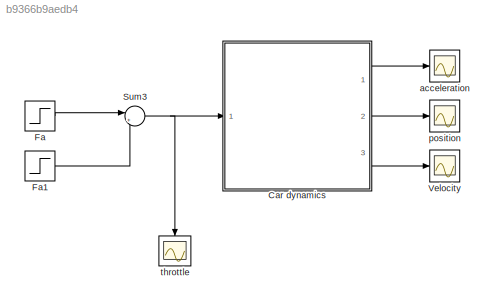
MODEL slx_b9366b9aedb4
KIND model
CONFIG AbsTol = auto
CONFIG FixedStep = auto
CONFIG MaxStep = 0.01
CONFIG MinStep = auto
CONFIG RelTol = 1e-3
CONFIG SampleTimeConstraint = Unconstrained
CONFIG Solver = VariableStepAuto
CONFIG SolverMode = Auto
CONFIG SolverName = VariableStepAuto
CONFIG StartTime = 0.0
CONFIG StopTime = 10
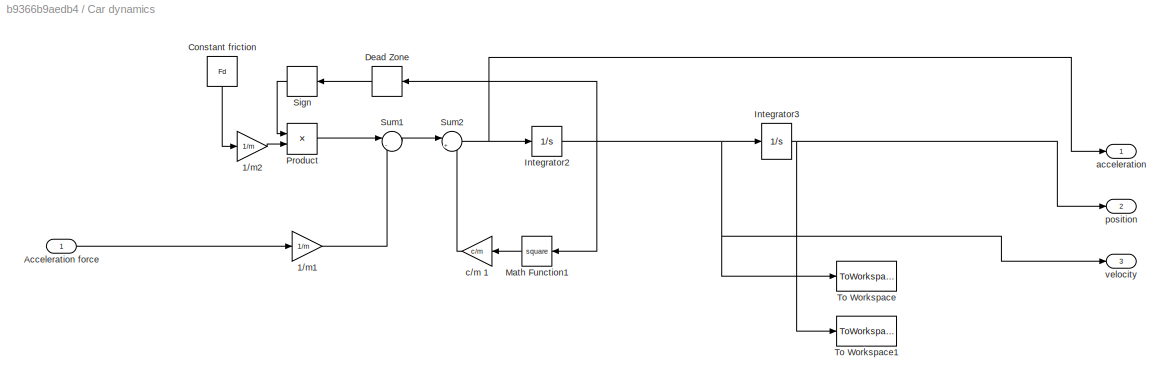
BLOCK [SubSystem] Car dynamics 
  Ports = [1, 3]
  RequestExecContextInheritance = off
  Variant = off
BLOCK [Gain] Car dynamics /1//m1
  Gain = 1/m
  OutDataTypeStr = Inherit: Inherit via internal rule
  ParamDataTypeStr = Inherit: Inherit via internal rule
  SaturateOnIntegerOverflow = off
BLOCK [Gain] Car dynamics /1//m2
  Gain = 1/m
  OutDataTypeStr = Inherit: Inherit via internal rule
  ParamDataTypeStr = Inherit: Inherit via internal rule
  SaturateOnIntegerOverflow = off
BLOCK [Inport] Car dynamics /Acceleration force
  IconDisplay = Port number
BLOCK [Constant] Car dynamics /Constant friction 
  Value = Fd
BLOCK [DeadZone] Car dynamics /Dead Zone
  LowerValue = -0.01
  UpperValue = 0.01
BLOCK [Integrator] Car dynamics /Integrator2
  Ports = [1, 1]
BLOCK [Integrator] Car dynamics /Integrator3
  Ports = [1, 1]
BLOCK [Math] Car dynamics /Math Function1
  Operator = square
  Ports = [1, 1]
BLOCK [Product] Car dynamics /Product
  InputSameDT = off
  OutDataTypeStr = Inherit: Inherit via internal rule
  Ports = [2, 1]
  RndMeth = Floor
  SaturateOnIntegerOverflow = off
BLOCK [Signum] Car dynamics /Sign
BLOCK [Sum] Car dynamics /Sum1
  IconShape = round
  InputSameDT = off
  Inputs = |-+
  OutDataTypeStr = Inherit: Inherit via internal rule
  Ports = [2, 1]
  SaturateOnIntegerOverflow = off
BLOCK [Sum] Car dynamics /Sum2
  IconShape = round
  InputSameDT = off
  Inputs = |+-
  OutDataTypeStr = Inherit: Inherit via internal rule
  Ports = [2, 1]
  SaturateOnIntegerOverflow = off
BLOCK [ToWorkspace] Car dynamics /To Workspace
  FixptAsFi = on
  MaxDataPoints = inf
  Ports = [1]
  SampleTime = -1
  Save2DSignal = 3-D array (concatenate along third dimension)
  SaveFormat = Timeseries
  VariableName = speed
BLOCK [ToWorkspace] Car dynamics /To Workspace1
  FixptAsFi = on
  MaxDataPoints = inf
  Ports = [1]
  SampleTime = -1
  Save2DSignal = 3-D array (concatenate along third dimension)
  SaveFormat = Timeseries
  VariableName = position
BLOCK [Outport] Car dynamics /acceleration
  IconDisplay = Port number
BLOCK [Gain] Car dynamics /c//m 1
  Gain = c/m
  OutDataTypeStr = Inherit: Inherit via internal rule
  ParamDataTypeStr = Inherit: Inherit via internal rule
  SaturateOnIntegerOverflow = off
BLOCK [Outport] Car dynamics /position 
  IconDisplay = Port number
  Port = 2
BLOCK [Outport] Car dynamics /velocity
  IconDisplay = Port number
  Port = 3
BLOCK [Step] Fa
  After = Fa
  SampleTime = 0
BLOCK [Step] Fa1
  After = Fa
  SampleTime = 0
  Time = 6
BLOCK [Sum] Sum3
  IconShape = round
  InputSameDT = off
  Inputs = |+-
  OutDataTypeStr = Inherit: Inherit via internal rule
  Ports = [2, 1]
  SaturateOnIntegerOverflow = off
BLOCK [Scope] Velocity 
  Ports = [1]
  ScopeSpecificationString = Simulink.scopes.TimeScopeBlockCfg('CurrentConfiguration', extmgr.ConfigurationSet(extmgr.Configuration('Core','General UI',true),extmgr.Configuration('Core','Source UI',true),extmgr.Configuration('Sources','WiredSimulink',true,'DataLoggingVariableName','ScopeData2'),extmgr.Configuration('Visuals','Time Domain',true,'SerializedDisplays',{struct('MinYLimReal','-0.08349','MaxYLimReal','0.75143','YLab...<+1447ch>
BLOCK [Scope] acceleration
  Ports = [1]
  ScopeSpecificationString = Simulink.scopes.TimeScopeBlockCfg('CurrentConfiguration', extmgr.ConfigurationSet(extmgr.Configuration('Core','General UI',true),extmgr.Configuration('Core','Source UI',true),extmgr.Configuration('Sources','WiredSimulink',true,'DataLoggingVariableName','ScopeData1'),extmgr.Configuration('Visuals','Time Domain',true,'SerializedDisplays',{struct('MinYLimReal','-2.08333','MaxYLimReal','2.08333','YLab...<+1426ch>
BLOCK [Scope] position
  Ports = [1]
  ScopeSpecificationString = Simulink.scopes.TimeScopeBlockCfg('CurrentConfiguration', extmgr.ConfigurationSet(extmgr.Configuration('Core','General UI',true),extmgr.Configuration('Core','Source UI',true),extmgr.Configuration('Sources','WiredSimulink',true,'DataLoggingVariableName','ScopeData3'),extmgr.Configuration('Visuals','Time Domain',true,'SerializedDisplays',{struct('MinYLimReal','-0.36192','MaxYLimReal','3.25728','YLab...<+1446ch>
BLOCK [Scope] throttle
  Ports = [1]
  ScopeSpecificationString = Simulink.scopes.TimeScopeBlockCfg('CurrentConfiguration', extmgr.ConfigurationSet(extmgr.Configuration('Core','General UI',true),extmgr.Configuration('Core','Source UI',true),extmgr.Configuration('Sources','WiredSimulink',true,'DataLoggingVariableName','ScopeData2'),extmgr.Configuration('Visuals','Time Domain',true,'SerializedDisplays',{struct('MinYLimReal','-0.625','MaxYLimReal','5.625','YLabelRe...<+1431ch>
LINE Car dynamics /1//m1:1 -> Car dynamics /Sum1:2
LINE Car dynamics /1//m2:1 -> Car dynamics /Product:2
LINE Car dynamics /Acceleration force:1 -> Car dynamics /1//m1:1
LINE Car dynamics /Constant friction :1 -> Car dynamics /1//m2:1
LINE Car dynamics /Dead Zone:1 -> Car dynamics /Sign:1
NET Car dynamics /Integrator2:1 -> Car dynamics /Dead Zone:1, Car dynamics /Integrator3:1, Car dynamics /Math Function1:1, Car dynamics /To Workspace:1, Car dynamics /velocity:1
NET Car dynamics /Integrator3:1 -> Car dynamics /To Workspace1:1, Car dynamics /position :1
LINE Car dynamics /Math Function1:1 -> Car dynamics /c//m 1:1
LINE Car dynamics /Product:1 -> Car dynamics /Sum1:1
LINE Car dynamics /Sign:1 -> Car dynamics /Product:1
LINE Car dynamics /Sum1:1 -> Car dynamics /Sum2:1
NET Car dynamics /Sum2:1 -> Car dynamics /Integrator2:1, Car dynamics /acceleration:1
LINE Car dynamics /c//m 1:1 -> Car dynamics /Sum2:2
LINE Car dynamics :1 -> acceleration:1
LINE Car dynamics :2 -> position:1
LINE Car dynamics :3 -> Velocity :1
LINE Fa1:1 -> Sum3:2
LINE Fa:1 -> Sum3:1
NET Sum3:1 -> Car dynamics :1, throttle:1
note: NET lines group one-source signal fan-out (src -> all destinations, sorted); 1:1 wires keep LINE
